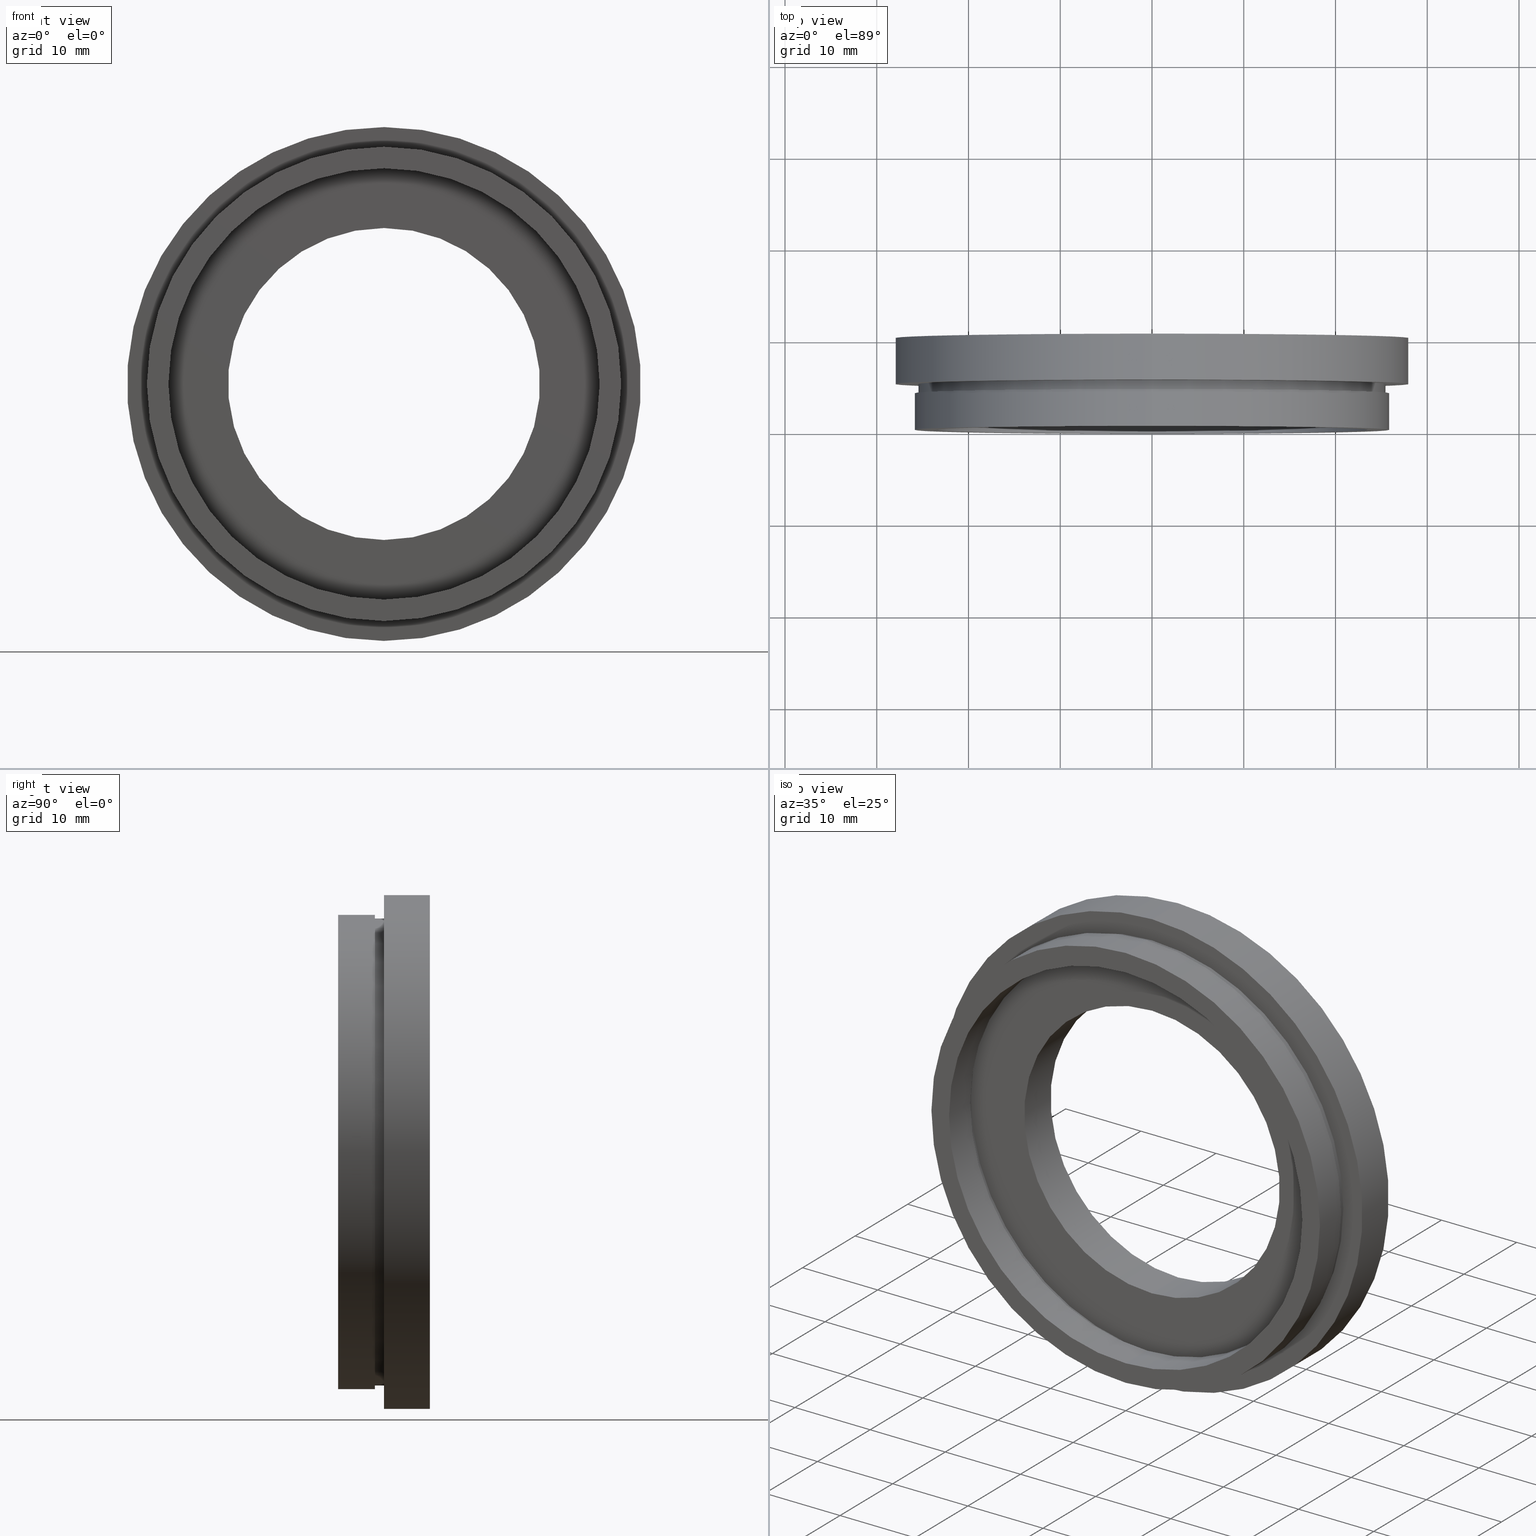
[diagram: canonical four-view strip — front | top / right | iso, engineering-drawing reading convention]
A machine part, canonical four-view strip (front | top / right | iso — engineering-drawing reading convention). The complete STEP part file that produces these views, byte-faithful:
ISO-10303-21;
HEADER;
FILE_DESCRIPTION (( 'STEP AP214' ),
    '1' );
FILE_NAME ('504095.STEP',
    '2019-10-10T01:55:58',
    ( 'user' ),
    ( '΢���й�' ),
    'SwSTEP 2.0',
    'SolidWorks 2016',
    '' );
FILE_SCHEMA (( 'AUTOMOTIVE_DESIGN' ));
ENDSEC;

DATA;
#1 = ADVANCED_FACE ( 'NONE', ( #421, #88 ), #576, .F. ) ;
#2 = ORIENTED_EDGE ( 'NONE', *, *, #249, .T. ) ;
#3 = CIRCLE ( 'NONE', #617, 17.00000000000000000 ) ;
#4 = DIRECTION ( 'NONE',  ( 0.0000000000000000000, 0.0000000000000000000, 1.000000000000000000 ) ) ;
#5 = CARTESIAN_POINT ( 'NONE',  ( 0.0000000000000000000, 13.74468085106383300, 0.0000000000000000000 ) ) ;
#6 = CARTESIAN_POINT ( 'NONE',  ( 0.0000000000000000000, 13.74468085106383300, 17.00000000000000000 ) ) ;
#7 = AXIS2_PLACEMENT_3D ( 'NONE', #189, #478, #140 ) ;
#8 = COLOUR_RGB ( '',1.000000000000000000, 1.000000000000000000, 1.000000000000000000 ) ;
#9 = ORIENTED_EDGE ( 'NONE', *, *, #225, .F. ) ;
#10 = CYLINDRICAL_SURFACE ( 'NONE', #479, 24.10000000000000100 ) ;
#11 = FACE_OUTER_BOUND ( 'NONE', #320, .T. ) ;
#12 = EDGE_CURVE ( 'NONE', #596, #565, #466, .T. ) ;
#13 = CARTESIAN_POINT ( 'NONE',  ( 2.951398785945121300E-015, 4.000000000000000000, -24.10000000000000100 ) ) ;
#14 = DIRECTION ( 'NONE',  ( -0.0000000000000000000, 1.000000000000000000, -0.0000000000000000000 ) ) ;
#15 = EDGE_CURVE ( 'NONE', #596, #142, #135, .T. ) ;
#16 = VERTEX_POINT ( 'NONE', #46 ) ;
#17 = PRESENTATION_LAYER_ASSIGNMENT (  '', '', ( #607 ) ) ;
#18 = EDGE_LOOP ( 'NONE', ( #152, #237 ) ) ;
#19 = SURFACE_STYLE_USAGE ( .BOTH. , #547 ) ;
#20 = LINE ( 'NONE', #491, #502 ) ;
#21 = PRESENTATION_STYLE_ASSIGNMENT (( #425 ) ) ;
#22 = MECHANICAL_DESIGN_GEOMETRIC_PRESENTATION_REPRESENTATION (  '', ( #579 ), #52 ) ;
#23 =( NAMED_UNIT ( * ) SI_UNIT ( $, .STERADIAN. ) SOLID_ANGLE_UNIT ( ) );
#24 = CARTESIAN_POINT ( 'NONE',  ( 3.429011037612589700E-015, 9.999999999999998200, -28.00000000000000400 ) ) ;
#25 = VERTEX_POINT ( 'NONE', #99 ) ;
#26 = CIRCLE ( 'NONE', #511, 24.10000000000000100 ) ;
#27 = FACE_OUTER_BOUND ( 'NONE', #57, .T. ) ;
#28 = AXIS2_PLACEMENT_3D ( 'NONE', #510, #209, #409 ) ;
#29 = DIRECTION ( 'NONE',  ( -0.0000000000000000000, 1.000000000000000000, -0.0000000000000000000 ) ) ;
#30 = EDGE_LOOP ( 'NONE', ( #534, #532, #123, #70 ) ) ;
#31 = AXIS2_PLACEMENT_3D ( 'NONE', #197, #50, #347 ) ;
#32 = ORIENTED_EDGE ( 'NONE', *, *, #559, .F. ) ;
#33 = ORIENTED_EDGE ( 'NONE', *, *, #357, .T. ) ;
#34 = DIRECTION ( 'NONE',  ( 0.0000000000000000000, 0.0000000000000000000, 1.000000000000000000 ) ) ;
#35 =( NAMED_UNIT ( * ) SI_UNIT ( $, .STERADIAN. ) SOLID_ANGLE_UNIT ( ) );
#36 = DIRECTION ( 'NONE',  ( -0.0000000000000000000, 1.000000000000000000, -0.0000000000000000000 ) ) ;
#37 = ORIENTED_EDGE ( 'NONE', *, *, #277, .F. ) ;
#38 = LINE ( 'NONE', #126, #162 ) ;
#39 = DIRECTION ( 'NONE',  ( 0.0000000000000000000, 0.0000000000000000000, 1.000000000000000000 ) ) ;
#40 = DIRECTION ( 'NONE',  ( -0.0000000000000000000, 1.000000000000000000, -0.0000000000000000000 ) ) ;
#41 = CARTESIAN_POINT ( 'NONE',  ( 25.44999999999999900, 4.000000000000000000, 0.0000000000000000000 ) ) ;
#42 = PLANE ( 'NONE',  #108 ) ;
#43 = EDGE_LOOP ( 'NONE', ( #104, #289, #33, #377 ) ) ;
#44 = MECHANICAL_DESIGN_GEOMETRIC_PRESENTATION_REPRESENTATION (  '', ( #607 ), #75 ) ;
#45 = ORIENTED_EDGE ( 'NONE', *, *, #341, .T. ) ;
#46 = CARTESIAN_POINT ( 'NONE',  ( 2.081899558550500300E-015, 4.999999999999999100, -17.00000000000000000 ) ) ;
#47 = ADVANCED_FACE ( 'NONE', ( #254, #506 ), #393, .F. ) ;
#48 = DIRECTION ( 'NONE',  ( 0.0000000000000000000, 0.0000000000000000000, 1.000000000000000000 ) ) ;
#49 = PRODUCT_DEFINITION_SHAPE ( 'NONE', 'NONE',  #215 ) ;
#50 = DIRECTION ( 'NONE',  ( -0.0000000000000000000, 1.000000000000000000, 0.0000000000000000000 ) ) ;
#51 =( NAMED_UNIT ( * ) SI_UNIT ( $, .STERADIAN. ) SOLID_ANGLE_UNIT ( ) );
#52 =( GEOMETRIC_REPRESENTATION_CONTEXT ( 3 ) GLOBAL_UNCERTAINTY_ASSIGNED_CONTEXT ( ( #552 ) ) GLOBAL_UNIT_ASSIGNED_CONTEXT ( ( #361, #593, #496 ) ) REPRESENTATION_CONTEXT ( 'NONE', 'WORKASPACE' ) );
#53 = FACE_OUTER_BOUND ( 'NONE', #81, .T. ) ;
#54 = EDGE_CURVE ( 'NONE', #142, #457, #403, .T. ) ;
#55 = DIRECTION ( 'NONE',  ( -0.0000000000000000000, 1.000000000000000000, -0.0000000000000000000 ) ) ;
#56 = PRESENTATION_LAYER_ASSIGNMENT (  '', '', ( #589 ) ) ;
#57 = EDGE_LOOP ( 'NONE', ( #130, #580, #412, #500 ) ) ;
#58 = ORIENTED_EDGE ( 'NONE', *, *, #181, .T. ) ;
#59 = PRESENTATION_STYLE_ASSIGNMENT (( #180 ) ) ;
#60 = COLOUR_RGB ( '',1.000000000000000000, 1.000000000000000000, 1.000000000000000000 ) ;
#61 = CARTESIAN_POINT ( 'NONE',  ( 0.0000000000000000000, 13.74468085106383300, 0.0000000000000000000 ) ) ;
#62 = ORIENTED_EDGE ( 'NONE', *, *, #213, .T. ) ;
#63 = SURFACE_STYLE_USAGE ( .BOTH. , #460 ) ;
#64 = ORIENTED_EDGE ( 'NONE', *, *, #473, .T. ) ;
#65 = EDGE_LOOP ( 'NONE', ( #392, #223 ) ) ;
#66 = PRESENTATION_STYLE_ASSIGNMENT (( #443 ) ) ;
#67 = STYLED_ITEM ( 'NONE', ( #476 ), #391 ) ;
#68 = CARTESIAN_POINT ( 'NONE',  ( 2.877919977996280300E-015, 0.0000000000000000000, -23.50000000000000000 ) ) ;
#69 = DIRECTION ( 'NONE',  ( -0.0000000000000000000, 1.000000000000000000, -0.0000000000000000000 ) ) ;
#70 = ORIENTED_EDGE ( 'NONE', *, *, #171, .T. ) ;
#71 = DIRECTION ( 'NONE',  ( 0.0000000000000000000, 0.0000000000000000000, 1.000000000000000000 ) ) ;
#72 = MANIFOLD_SOLID_BREP ( '��ת1', #558 ) ;
#73 = FACE_OUTER_BOUND ( 'NONE', #459, .T. ) ;
#74 = EDGE_CURVE ( 'NONE', #16, #235, #112, .T. ) ;
#75 =( GEOMETRIC_REPRESENTATION_CONTEXT ( 3 ) GLOBAL_UNCERTAINTY_ASSIGNED_CONTEXT ( ( #499 ) ) GLOBAL_UNIT_ASSIGNED_CONTEXT ( ( #563, #234, #35 ) ) REPRESENTATION_CONTEXT ( 'NONE', 'WORKASPACE' ) );
#76 =( LENGTH_UNIT ( ) NAMED_UNIT ( * ) SI_UNIT ( .MILLI., .METRE. ) );
#77 = FILL_AREA_STYLE ('',( #210 ) ) ;
#78 = PRESENTATION_LAYER_ASSIGNMENT (  '', '', ( #119 ) ) ;
#79 = FILL_AREA_STYLE ('',( #278 ) ) ;
#80 = EDGE_LOOP ( 'NONE', ( #334, #583, #411, #362 ) ) ;
#81 = EDGE_LOOP ( 'NONE', ( #594, #283 ) ) ;
#82 = VECTOR ( 'NONE', #354, 1000.000000000000000 ) ;
#83 = CARTESIAN_POINT ( 'NONE',  ( 0.0000000000000000000, 13.74468085106383300, 0.0000000000000000000 ) ) ;
#84 = EDGE_CURVE ( 'NONE', #433, #423, #372, .T. ) ;
#85 =( NAMED_UNIT ( * ) SI_UNIT ( $, .STERADIAN. ) SOLID_ANGLE_UNIT ( ) );
#86 = DIRECTION ( 'NONE',  ( 0.0000000000000000000, -0.0000000000000000000, -1.000000000000000000 ) ) ;
#87 = DIRECTION ( 'NONE',  ( -0.0000000000000000000, 1.000000000000000000, -0.0000000000000000000 ) ) ;
#88 = FACE_BOUND ( 'NONE', #514, .T. ) ;
#89 = MECHANICAL_DESIGN_GEOMETRIC_PRESENTATION_REPRESENTATION (  '', ( #589 ), #125 ) ;
#90 = ORIENTED_EDGE ( 'NONE', *, *, #435, .F. ) ;
#91 = PRESENTATION_STYLE_ASSIGNMENT (( #284 ) ) ;
#92 = DIRECTION ( 'NONE',  ( 0.0000000000000000000, -1.000000000000000000, 0.0000000000000000000 ) ) ;
#93 = DIRECTION ( 'NONE',  ( 0.0000000000000000000, 0.0000000000000000000, 1.000000000000000000 ) ) ;
#94 = CIRCLE ( 'NONE', #330, 28.00000000000000000 ) ;
#95 = CARTESIAN_POINT ( 'NONE',  ( 3.429011037612589700E-015, 13.74468085106383300, -28.00000000000000400 ) ) ;
#96 = CARTESIAN_POINT ( 'NONE',  ( 0.0000000000000000000, 4.999999999999999100, 17.00000000000000000 ) ) ;
#97 = STYLED_ITEM ( 'NONE', ( #272 ), #72 ) ;
#98 = ADVANCED_FACE ( 'NONE', ( #477, #358 ), #569, .F. ) ;
#99 = CARTESIAN_POINT ( 'NONE',  ( 3.116726103830013900E-015, 4.000000000000000000, -25.44999999999999900 ) ) ;
#100 = UNCERTAINTY_MEASURE_WITH_UNIT (LENGTH_MEASURE( 1.000000000000000100E-005 ), #414, 'distance_accuracy_value', 'NONE');
#101 = CARTESIAN_POINT ( 'NONE',  ( 0.0000000000000000000, 4.000000000000000000, 0.0000000000000000000 ) ) ;
#102 = VERTEX_POINT ( 'NONE', #141 ) ;
#103 =( LENGTH_UNIT ( ) NAMED_UNIT ( * ) SI_UNIT ( .MILLI., .METRE. ) );
#104 = ORIENTED_EDGE ( 'NONE', *, *, #181, .F. ) ;
#105 = ORIENTED_EDGE ( 'NONE', *, *, #550, .T. ) ;
#106 = PRESENTATION_STYLE_ASSIGNMENT (( #63 ) ) ;
#107 = LINE ( 'NONE', #6, #82 ) ;
#108 = AXIS2_PLACEMENT_3D ( 'NONE', #575, #434, #93 ) ;
#109 = DIRECTION ( 'NONE',  ( 0.0000000000000000000, 0.0000000000000000000, 1.000000000000000000 ) ) ;
#110 = DIRECTION ( 'NONE',  ( -0.0000000000000000000, 1.000000000000000000, -0.0000000000000000000 ) ) ;
#111 = VECTOR ( 'NONE', #87, 1000.000000000000000 ) ;
#112 = LINE ( 'NONE', #574, #605 ) ;
#113 = DIRECTION ( 'NONE',  ( 0.0000000000000000000, 0.0000000000000000000, 1.000000000000000000 ) ) ;
#114 = ORIENTED_EDGE ( 'NONE', *, *, #373, .F. ) ;
#115 = PLANE ( 'NONE',  #325 ) ;
#116 = VERTEX_POINT ( 'NONE', #384 ) ;
#117 = EDGE_LOOP ( 'NONE', ( #2, #445 ) ) ;
#118 = CIRCLE ( 'NONE', #555, 17.00000000000000000 ) ;
#119 = STYLED_ITEM ( 'NONE', ( #21 ), #198 ) ;
#120 = CARTESIAN_POINT ( 'NONE',  ( 24.10000000000000100, 4.999999999999999100, 0.0000000000000000000 ) ) ;
#121 = FILL_AREA_STYLE ('',( #415 ) ) ;
#122 = VECTOR ( 'NONE', #390, 1000.000000000000000 ) ;
#123 = ORIENTED_EDGE ( 'NONE', *, *, #494, .T. ) ;
#124 = SURFACE_STYLE_FILL_AREA ( #245 ) ;
#125 =( GEOMETRIC_REPRESENTATION_CONTEXT ( 3 ) GLOBAL_UNCERTAINTY_ASSIGNED_CONTEXT ( ( #100 ) ) GLOBAL_UNIT_ASSIGNED_CONTEXT ( ( #414, #319, #23 ) ) REPRESENTATION_CONTEXT ( 'NONE', 'WORKASPACE' ) );
#126 = CARTESIAN_POINT ( 'NONE',  ( 0.0000000000000000000, 13.74468085106383300, 23.50000000000000000 ) ) ;
#127 = CARTESIAN_POINT ( 'NONE',  ( 0.0000000000000000000, 5.000000000000000900, 28.00000000000000000 ) ) ;
#128 = AXIS2_PLACEMENT_3D ( 'NONE', #623, #92, #299 ) ;
#129 = ORIENTED_EDGE ( 'NONE', *, *, #166, .T. ) ;
#130 = ORIENTED_EDGE ( 'NONE', *, *, #15, .T. ) ;
#131 = CYLINDRICAL_SURFACE ( 'NONE', #526, 23.50000000000000000 ) ;
#132 = DIRECTION ( 'NONE',  ( -0.0000000000000000000, 1.000000000000000000, -0.0000000000000000000 ) ) ;
#133 =( NAMED_UNIT ( * ) PLANE_ANGLE_UNIT ( ) SI_UNIT ( $, .RADIAN. ) );
#134 = AXIS2_PLACEMENT_3D ( 'NONE', #386, #40, #340 ) ;
#135 = CIRCLE ( 'NONE', #622, 28.00000000000000000 ) ;
#136 =( LENGTH_UNIT ( ) NAMED_UNIT ( * ) SI_UNIT ( .MILLI., .METRE. ) );
#137 = CIRCLE ( 'NONE', #422, 24.10000000000000100 ) ;
#138 = CYLINDRICAL_SURFACE ( 'NONE', #600, 28.00000000000000400 ) ;
#139 = EDGE_CURVE ( 'NONE', #142, #596, #94, .T. ) ;
#140 = DIRECTION ( 'NONE',  ( 0.0000000000000000000, 0.0000000000000000000, 1.000000000000000000 ) ) ;
#141 = CARTESIAN_POINT ( 'NONE',  ( 0.0000000000000000000, 5.000000000000000900, 25.44999999999999900 ) ) ;
#142 = VERTEX_POINT ( 'NONE', #296 ) ;
#143 = ADVANCED_FACE ( 'NONE', ( #465 ), #211, .F. ) ;
#144 = UNCERTAINTY_MEASURE_WITH_UNIT (LENGTH_MEASURE( 1.000000000000000100E-005 ), #472, 'distance_accuracy_value', 'NONE');
#145 = DIRECTION ( 'NONE',  ( 0.0000000000000000000, 0.0000000000000000000, 1.000000000000000000 ) ) ;
#146 = EDGE_LOOP ( 'NONE', ( #535, #281, #616, #45 ) ) ;
#147 = FACE_OUTER_BOUND ( 'NONE', #43, .T. ) ;
#148 = ADVANCED_FACE ( 'NONE', ( #250, #73 ), #430, .F. ) ;
#149 = SURFACE_SIDE_STYLE ('',( #204 ) ) ;
#150 = AXIS2_PLACEMENT_3D ( 'NONE', #404, #236, #518 ) ;
#151 = UNCERTAINTY_MEASURE_WITH_UNIT (LENGTH_MEASURE( 1.000000000000000100E-005 ), #450, 'distance_accuracy_value', 'NONE');
#152 = ORIENTED_EDGE ( 'NONE', *, *, #341, .F. ) ;
#153 = FACE_OUTER_BOUND ( 'NONE', #355, .T. ) ;
#154 = CIRCLE ( 'NONE', #504, 24.10000000000000100 ) ;
#155 = CARTESIAN_POINT ( 'NONE',  ( 0.0000000000000000000, 9.999999999999998200, 28.00000000000000400 ) ) ;
#156 = AXIS2_PLACEMENT_3D ( 'NONE', #501, #216, #495 ) ;
#157 = ORIENTED_EDGE ( 'NONE', *, *, #494, .F. ) ;
#158 = PRESENTATION_LAYER_ASSIGNMENT (  '', '', ( #97 ) ) ;
#159 = EDGE_LOOP ( 'NONE', ( #114, #263, #570, #168 ) ) ;
#160 = CARTESIAN_POINT ( 'NONE',  ( 3.165099652396334400E-015, 4.000000000000000000, -25.84499999999999900 ) ) ;
#161 = DIRECTION ( 'NONE',  ( 0.0000000000000000000, 0.0000000000000000000, 1.000000000000000000 ) ) ;
#162 = VECTOR ( 'NONE', #509, 1000.000000000000000 ) ;
#163 = AXIS2_PLACEMENT_3D ( 'NONE', #388, #252, #530 ) ;
#164 = CARTESIAN_POINT ( 'NONE',  ( 0.0000000000000000000, 0.0000000000000000000, 0.0000000000000000000 ) ) ;
#165 =( NAMED_UNIT ( * ) SI_UNIT ( $, .STERADIAN. ) SOLID_ANGLE_UNIT ( ) );
#166 = EDGE_CURVE ( 'NONE', #565, #457, #343, .T. ) ;
#167 = DIRECTION ( 'NONE',  ( 0.0000000000000000000, 0.0000000000000000000, 1.000000000000000000 ) ) ;
#168 = ORIENTED_EDGE ( 'NONE', *, *, #542, .F. ) ;
#169 = ORIENTED_EDGE ( 'NONE', *, *, #185, .F. ) ;
#170 = ORIENTED_EDGE ( 'NONE', *, *, #139, .F. ) ;
#171 = EDGE_CURVE ( 'NONE', #610, #269, #572, .T. ) ;
#172 = AXIS2_PLACEMENT_3D ( 'NONE', #164, #178, #520 ) ;
#173 = CARTESIAN_POINT ( 'NONE',  ( 0.0000000000000000000, 13.74468085106383300, 0.0000000000000000000 ) ) ;
#174 = MECHANICAL_DESIGN_GEOMETRIC_PRESENTATION_REPRESENTATION (  '', ( #119 ), #219 ) ;
#175 = CARTESIAN_POINT ( 'NONE',  ( 0.0000000000000000000, 4.000000000000000000, 23.50000000000000000 ) ) ;
#176 = ORIENTED_EDGE ( 'NONE', *, *, #559, .T. ) ;
#177 = LINE ( 'NONE', #549, #322 ) ;
#178 = DIRECTION ( 'NONE',  ( 0.0000000000000000000, 0.0000000000000000000, 1.000000000000000000 ) ) ;
#179 = DIRECTION ( 'NONE',  ( 0.0000000000000000000, 0.0000000000000000000, 1.000000000000000000 ) ) ;
#180 = SURFACE_STYLE_USAGE ( .BOTH. , #522 ) ;
#181 = EDGE_CURVE ( 'NONE', #258, #512, #230, .T. ) ;
#182 = CARTESIAN_POINT ( 'NONE',  ( 23.50000000000000000, 4.000000000000000000, 0.0000000000000000000 ) ) ;
#183 = SURFACE_STYLE_USAGE ( .BOTH. , #525 ) ;
#184 = DIRECTION ( 'NONE',  ( 0.0000000000000000000, 0.0000000000000000000, 1.000000000000000000 ) ) ;
#185 = EDGE_CURVE ( 'NONE', #25, #218, #452, .T. ) ;
#186 = CARTESIAN_POINT ( 'NONE',  ( 2.951398785945121300E-015, 13.74468085106383300, -24.10000000000000100 ) ) ;
#187 = AXIS2_PLACEMENT_3D ( 'NONE', #214, #271, #317 ) ;
#188 =( NAMED_UNIT ( * ) SI_UNIT ( $, .STERADIAN. ) SOLID_ANGLE_UNIT ( ) );
#189 = CARTESIAN_POINT ( 'NONE',  ( 0.0000000000000000000, 4.000000000000000000, 0.0000000000000000000 ) ) ;
#190 = EDGE_LOOP ( 'NONE', ( #90, #416, #176, #467 ) ) ;
#191 = ADVANCED_FACE ( 'NONE', ( #591 ), #399, .F. ) ;
#192 = COLOUR_RGB ( '',1.000000000000000000, 1.000000000000000000, 1.000000000000000000 ) ;
#193 = DIRECTION ( 'NONE',  ( -0.0000000000000000000, 1.000000000000000000, -0.0000000000000000000 ) ) ;
#194 = SURFACE_STYLE_FILL_AREA ( #268 ) ;
#195 = CARTESIAN_POINT ( 'NONE',  ( 0.0000000000000000000, 4.000000000000000000, 0.0000000000000000000 ) ) ;
#196 = MECHANICAL_DESIGN_GEOMETRIC_PRESENTATION_REPRESENTATION (  '', ( #97 ), #232 ) ;
#197 = CARTESIAN_POINT ( 'NONE',  ( 28.00000000000000000, 5.000000000000000900, 0.0000000000000000000 ) ) ;
#198 = ADVANCED_FACE ( 'NONE', ( #147 ), #222, .T. ) ;
#199 = DIRECTION ( 'NONE',  ( 0.0000000000000000000, 0.0000000000000000000, 1.000000000000000000 ) ) ;
#200 = DIRECTION ( 'NONE',  ( 0.0000000000000000000, 0.0000000000000000000, 1.000000000000000000 ) ) ;
#201 = ORIENTED_EDGE ( 'NONE', *, *, #382, .T. ) ;
#202 = ORIENTED_EDGE ( 'NONE', *, *, #531, .T. ) ;
#203 = CARTESIAN_POINT ( 'NONE',  ( 2.081899558550500300E-015, 9.999999999999998200, -17.00000000000000000 ) ) ;
#204 = SURFACE_STYLE_FILL_AREA ( #489 ) ;
#205 = ORIENTED_EDGE ( 'NONE', *, *, #12, .T. ) ;
#206 =( NAMED_UNIT ( * ) SI_UNIT ( $, .STERADIAN. ) SOLID_ANGLE_UNIT ( ) );
#207 = PRESENTATION_LAYER_ASSIGNMENT (  '', '', ( #67 ) ) ;
#208 = EDGE_CURVE ( 'NONE', #258, #312, #469, .T. ) ;
#209 = DIRECTION ( 'NONE',  ( -0.0000000000000000000, 1.000000000000000000, -0.0000000000000000000 ) ) ;
#210 = FILL_AREA_STYLE_COLOUR ( '', #285 ) ;
#211 = CYLINDRICAL_SURFACE ( 'NONE', #453, 24.10000000000000100 ) ;
#212 = DIRECTION ( 'NONE',  ( -0.0000000000000000000, 1.000000000000000000, 0.0000000000000000000 ) ) ;
#213 = EDGE_CURVE ( 'NONE', #333, #364, #107, .T. ) ;
#214 = CARTESIAN_POINT ( 'NONE',  ( 0.0000000000000000000, 0.0000000000000000000, 0.0000000000000000000 ) ) ;
#215 = PRODUCT_DEFINITION ( 'δ֪', '', #256, #331 ) ;
#216 = DIRECTION ( 'NONE',  ( -0.0000000000000000000, 1.000000000000000000, -0.0000000000000000000 ) ) ;
#217 = VECTOR ( 'NONE', #442, 1000.000000000000000 ) ;
#218 = VERTEX_POINT ( 'NONE', #538 ) ;
#219 =( GEOMETRIC_REPRESENTATION_CONTEXT ( 3 ) GLOBAL_UNCERTAINTY_ASSIGNED_CONTEXT ( ( #480 ) ) GLOBAL_UNIT_ASSIGNED_CONTEXT ( ( #76, #561, #310 ) ) REPRESENTATION_CONTEXT ( 'NONE', 'WORKASPACE' ) );
#220 = DIRECTION ( 'NONE',  ( -0.0000000000000000000, 1.000000000000000000, -0.0000000000000000000 ) ) ;
#221 = ORIENTED_EDGE ( 'NONE', *, *, #473, .F. ) ;
#222 = CYLINDRICAL_SURFACE ( 'NONE', #318, 25.84499999999999900 ) ;
#223 = ORIENTED_EDGE ( 'NONE', *, *, #311, .T. ) ;
#224 = CARTESIAN_POINT ( 'NONE',  ( 0.0000000000000000000, 9.999999999999998200, 0.0000000000000000000 ) ) ;
#225 = EDGE_CURVE ( 'NONE', #218, #102, #598, .T. ) ;
#226 = DIRECTION ( 'NONE',  ( -0.0000000000000000000, 1.000000000000000000, -0.0000000000000000000 ) ) ;
#227 = CARTESIAN_POINT ( 'NONE',  ( 0.0000000000000000000, 4.000000000000000000, 0.0000000000000000000 ) ) ;
#228 = SURFACE_STYLE_FILL_AREA ( #79 ) ;
#229 = AXIS2_PLACEMENT_3D ( 'NONE', #505, #367, #599 ) ;
#230 = LINE ( 'NONE', #471, #328 ) ;
#231 = CARTESIAN_POINT ( 'NONE',  ( 0.0000000000000000000, 9.999999999999998200, 0.0000000000000000000 ) ) ;
#232 =( GEOMETRIC_REPRESENTATION_CONTEXT ( 3 ) GLOBAL_UNCERTAINTY_ASSIGNED_CONTEXT ( ( #592 ) ) GLOBAL_UNIT_ASSIGNED_CONTEXT ( ( #251, #529, #188 ) ) REPRESENTATION_CONTEXT ( 'NONE', 'WORKASPACE' ) );
#233 = PRODUCT ( '504095', '504095', '', ( #241 ) ) ;
#234 =( NAMED_UNIT ( * ) PLANE_ANGLE_UNIT ( ) SI_UNIT ( $, .RADIAN. ) );
#235 = VERTEX_POINT ( 'NONE', #203 ) ;
#236 = DIRECTION ( 'NONE',  ( -0.0000000000000000000, 1.000000000000000000, -0.0000000000000000000 ) ) ;
#237 = ORIENTED_EDGE ( 'NONE', *, *, #84, .F. ) ;
#238 = VERTEX_POINT ( 'NONE', #426 ) ;
#239 = FACE_OUTER_BOUND ( 'NONE', #190, .T. ) ;
#240 = CARTESIAN_POINT ( 'NONE',  ( 0.0000000000000000000, 5.000000000000000900, 0.0000000000000000000 ) ) ;
#241 = PRODUCT_CONTEXT ( 'NONE', #427, 'mechanical' ) ;
#242 = CARTESIAN_POINT ( 'NONE',  ( 0.0000000000000000000, 9.999999999999998200, 0.0000000000000000000 ) ) ;
#243 = DIRECTION ( 'NONE',  ( -0.0000000000000000000, 1.000000000000000000, -0.0000000000000000000 ) ) ;
#244 = MECHANICAL_DESIGN_GEOMETRIC_PRESENTATION_REPRESENTATION (  '', ( #67 ), #273 ) ;
#245 = FILL_AREA_STYLE ('',( #248 ) ) ;
#246 = CARTESIAN_POINT ( 'NONE',  ( 0.0000000000000000000, 4.000000000000000000, 0.0000000000000000000 ) ) ;
#247 = FACE_OUTER_BOUND ( 'NONE', #257, .T. ) ;
#248 = FILL_AREA_STYLE_COLOUR ( '', #604 ) ;
#249 = EDGE_CURVE ( 'NONE', #333, #16, #584, .T. ) ;
#250 = FACE_BOUND ( 'NONE', #18, .T. ) ;
#251 =( LENGTH_UNIT ( ) NAMED_UNIT ( * ) SI_UNIT ( .MILLI., .METRE. ) );
#252 = DIRECTION ( 'NONE',  ( -0.0000000000000000000, 1.000000000000000000, -0.0000000000000000000 ) ) ;
#253 = CARTESIAN_POINT ( 'NONE',  ( 0.0000000000000000000, 5.000000000000000900, 0.0000000000000000000 ) ) ;
#254 = FACE_BOUND ( 'NONE', #348, .T. ) ;
#255 = ADVANCED_FACE ( 'NONE', ( #337 ), #524, .T. ) ;
#256 = PRODUCT_DEFINITION_FORMATION_WITH_SPECIFIED_SOURCE ( '�κ�', '', #233, .NOT_KNOWN. ) ;
#257 = EDGE_LOOP ( 'NONE', ( #303, #313, #62, #64 ) ) ;
#258 = VERTEX_POINT ( 'NONE', #578 ) ;
#259 = LINE ( 'NONE', #461, #365 ) ;
#260 = CARTESIAN_POINT ( 'NONE',  ( 0.0000000000000000000, 4.999999999999999100, 0.0000000000000000000 ) ) ;
#261 = AXIS2_PLACEMENT_3D ( 'NONE', #260, #537, #200 ) ;
#262 = DIRECTION ( 'NONE',  ( 0.0000000000000000000, 0.0000000000000000000, 1.000000000000000000 ) ) ;
#263 = ORIENTED_EDGE ( 'NONE', *, *, #419, .T. ) ;
#264 = VECTOR ( 'NONE', #619, 1000.000000000000000 ) ;
#265 = CARTESIAN_POINT ( 'NONE',  ( 0.0000000000000000000, 5.000000000000000900, 0.0000000000000000000 ) ) ;
#266 = UNCERTAINTY_MEASURE_WITH_UNIT (LENGTH_MEASURE( 1.000000000000000100E-005 ), #136, 'distance_accuracy_value', 'NONE');
#267 = AXIS2_PLACEMENT_3D ( 'NONE', #246, #527, #184 ) ;
#268 = FILL_AREA_STYLE ('',( #544 ) ) ;
#269 = VERTEX_POINT ( 'NONE', #536 ) ;
#270 = CIRCLE ( 'NONE', #492, 25.44999999999999900 ) ;
#271 = DIRECTION ( 'NONE',  ( -0.0000000000000000000, 1.000000000000000000, -0.0000000000000000000 ) ) ;
#272 = PRESENTATION_STYLE_ASSIGNMENT (( #571 ) ) ;
#273 =( GEOMETRIC_REPRESENTATION_CONTEXT ( 3 ) GLOBAL_UNCERTAINTY_ASSIGNED_CONTEXT ( ( #266 ) ) GLOBAL_UNIT_ASSIGNED_CONTEXT ( ( #136, #431, #85 ) ) REPRESENTATION_CONTEXT ( 'NONE', 'WORKASPACE' ) );
#274 = DIRECTION ( 'NONE',  ( 0.0000000000000000000, 0.0000000000000000000, 1.000000000000000000 ) ) ;
#275 = CYLINDRICAL_SURFACE ( 'NONE', #451, 28.00000000000000400 ) ;
#276 = CIRCLE ( 'NONE', #470, 25.84499999999999900 ) ;
#277 = EDGE_CURVE ( 'NONE', #424, #116, #154, .T. ) ;
#278 = FILL_AREA_STYLE_COLOUR ( '', #356 ) ;
#279 = EDGE_LOOP ( 'NONE', ( #105, #301, #624, #9 ) ) ;
#280 = DIRECTION ( 'NONE',  ( 0.0000000000000000000, 0.0000000000000000000, 1.000000000000000000 ) ) ;
#281 = ORIENTED_EDGE ( 'NONE', *, *, #498, .F. ) ;
#282 = PRODUCT_RELATED_PRODUCT_CATEGORY ( 'part', '', ( #233 ) ) ;
#283 = ORIENTED_EDGE ( 'NONE', *, *, #587, .F. ) ;
#284 = SURFACE_STYLE_USAGE ( .BOTH. , #379 ) ;
#285 = COLOUR_RGB ( '',1.000000000000000000, 1.000000000000000000, 1.000000000000000000 ) ;
#286 = AXIS2_PLACEMENT_3D ( 'NONE', #306, #586, #262 ) ;
#287 = DIRECTION ( 'NONE',  ( -0.0000000000000000000, 1.000000000000000000, -0.0000000000000000000 ) ) ;
#288 = APPLICATION_PROTOCOL_DEFINITION ( 'draft international standard', 'automotive_design', 1998, #567 ) ;
#289 = ORIENTED_EDGE ( 'NONE', *, *, #208, .T. ) ;
#290 = CARTESIAN_POINT ( 'NONE',  ( 0.0000000000000000000, 13.74468085106383300, 0.0000000000000000000 ) ) ;
#291 = EDGE_LOOP ( 'NONE', ( #507, #170 ) ) ;
#292 = FACE_OUTER_BOUND ( 'NONE', #30, .T. ) ;
#293 = FACE_BOUND ( 'NONE', #449, .T. ) ;
#294 = DIRECTION ( 'NONE',  ( 0.0000000000000000000, 0.0000000000000000000, 1.000000000000000000 ) ) ;
#295 = FILL_AREA_STYLE ('',( #614 ) ) ;
#296 = CARTESIAN_POINT ( 'NONE',  ( 3.429011037612589300E-015, 5.000000000000000900, -28.00000000000000000 ) ) ;
#297 = CARTESIAN_POINT ( 'NONE',  ( 0.0000000000000000000, 13.74468085106383300, 25.84499999999999900 ) ) ;
#298 = AXIS2_PLACEMENT_3D ( 'NONE', #227, #69, #324 ) ;
#299 = DIRECTION ( 'NONE',  ( 0.0000000000000000000, -0.0000000000000000000, -1.000000000000000000 ) ) ;
#300 = DIRECTION ( 'NONE',  ( 0.0000000000000000000, 0.0000000000000000000, 1.000000000000000000 ) ) ;
#301 = ORIENTED_EDGE ( 'NONE', *, *, #464, .T. ) ;
#302 = ADVANCED_FACE ( 'NONE', ( #27 ), #138, .T. ) ;
#303 = ORIENTED_EDGE ( 'NONE', *, *, #74, .F. ) ;
#304 = CARTESIAN_POINT ( 'NONE',  ( 0.0000000000000000000, 13.74468085106383300, 28.00000000000000400 ) ) ;
#305 = DIRECTION ( 'NONE',  ( -0.0000000000000000000, 1.000000000000000000, -0.0000000000000000000 ) ) ;
#306 = CARTESIAN_POINT ( 'NONE',  ( 0.0000000000000000000, 0.0000000000000000000, 0.0000000000000000000 ) ) ;
#307 = ORIENTED_EDGE ( 'NONE', *, *, #357, .F. ) ;
#308 = CIRCLE ( 'NONE', #187, 23.50000000000000000 ) ;
#309 = PRESENTATION_LAYER_ASSIGNMENT (  '', '', ( #338 ) ) ;
#310 =( NAMED_UNIT ( * ) SI_UNIT ( $, .STERADIAN. ) SOLID_ANGLE_UNIT ( ) );
#311 = EDGE_CURVE ( 'NONE', #512, #497, #406, .T. ) ;
#312 = VERTEX_POINT ( 'NONE', #346 ) ;
#313 = ORIENTED_EDGE ( 'NONE', *, *, #249, .F. ) ;
#314 = CYLINDRICAL_SURFACE ( 'NONE', #368, 17.00000000000000000 ) ;
#315 = EDGE_CURVE ( 'NONE', #497, #512, #276, .T. ) ;
#316 = CARTESIAN_POINT ( 'NONE',  ( 0.0000000000000000000, 4.000000000000000000, 0.0000000000000000000 ) ) ;
#317 = DIRECTION ( 'NONE',  ( 0.0000000000000000000, 0.0000000000000000000, 1.000000000000000000 ) ) ;
#318 = AXIS2_PLACEMENT_3D ( 'NONE', #173, #132, #145 ) ;
#319 =( NAMED_UNIT ( * ) PLANE_ANGLE_UNIT ( ) SI_UNIT ( $, .RADIAN. ) );
#320 = EDGE_LOOP ( 'NONE', ( #582, #456 ) ) ;
#321 = ORIENTED_EDGE ( 'NONE', *, *, #595, .T. ) ;
#322 = VECTOR ( 'NONE', #220, 1000.000000000000000 ) ;
#323 = DIRECTION ( 'NONE',  ( 0.0000000000000000000, 0.0000000000000000000, 1.000000000000000000 ) ) ;
#324 = DIRECTION ( 'NONE',  ( 0.0000000000000000000, 0.0000000000000000000, 1.000000000000000000 ) ) ;
#325 = AXIS2_PLACEMENT_3D ( 'NONE', #120, #212, #420 ) ;
#326 = DIRECTION ( 'NONE',  ( 0.0000000000000000000, 0.0000000000000000000, 1.000000000000000000 ) ) ;
#327 = ORIENTED_EDGE ( 'NONE', *, *, #54, .F. ) ;
#328 = VECTOR ( 'NONE', #519, 1000.000000000000000 ) ;
#329 = DIRECTION ( 'NONE',  ( -0.0000000000000000000, 1.000000000000000000, -0.0000000000000000000 ) ) ;
#330 = AXIS2_PLACEMENT_3D ( 'NONE', #428, #287, #336 ) ;
#331 = PRODUCT_DEFINITION_CONTEXT ( 'detailed design', #567, 'design' ) ;
#332 = DIRECTION ( 'NONE',  ( -0.0000000000000000000, 1.000000000000000000, -0.0000000000000000000 ) ) ;
#333 = VERTEX_POINT ( 'NONE', #96 ) ;
#334 = ORIENTED_EDGE ( 'NONE', *, *, #464, .F. ) ;
#335 = ORIENTED_EDGE ( 'NONE', *, *, #498, .T. ) ;
#336 = DIRECTION ( 'NONE',  ( 0.0000000000000000000, 0.0000000000000000000, 1.000000000000000000 ) ) ;
#337 = FACE_OUTER_BOUND ( 'NONE', #546, .T. ) ;
#338 = STYLED_ITEM ( 'NONE', ( #59 ), #397 ) ;
#339 = DIRECTION ( 'NONE',  ( 0.0000000000000000000, 0.0000000000000000000, 1.000000000000000000 ) ) ;
#340 = DIRECTION ( 'NONE',  ( 0.0000000000000000000, 0.0000000000000000000, 1.000000000000000000 ) ) ;
#341 = EDGE_CURVE ( 'NONE', #423, #433, #418, .T. ) ;
#342 = FILL_AREA_STYLE ('',( #481 ) ) ;
#343 = CIRCLE ( 'NONE', #396, 28.00000000000000400 ) ;
#344 = CARTESIAN_POINT ( 'NONE',  ( 0.0000000000000000000, 4.000000000000000000, 0.0000000000000000000 ) ) ;
#345 = ADVANCED_FACE ( 'NONE', ( #11, #293 ), #42, .F. ) ;
#346 = CARTESIAN_POINT ( 'NONE',  ( 0.0000000000000000000, 0.0000000000000000000, 25.84499999999999900 ) ) ;
#347 = DIRECTION ( 'NONE',  ( 0.0000000000000000000, 0.0000000000000000000, 1.000000000000000000 ) ) ;
#348 = EDGE_LOOP ( 'NONE', ( #221, #32 ) ) ;
#349 = ADVANCED_FACE ( 'NONE', ( #508 ), #493, .T. ) ;
#350 = ORIENTED_EDGE ( 'NONE', *, *, #401, .T. ) ;
#351 = ORIENTED_EDGE ( 'NONE', *, *, #277, .T. ) ;
#352 = STYLED_ITEM ( 'NONE', ( #66 ), #255 ) ;
#353 = COLOUR_RGB ( '',1.000000000000000000, 1.000000000000000000, 1.000000000000000000 ) ;
#354 = DIRECTION ( 'NONE',  ( -0.0000000000000000000, 1.000000000000000000, -0.0000000000000000000 ) ) ;
#355 = EDGE_LOOP ( 'NONE', ( #327, #556, #205, #486 ) ) ;
#356 = COLOUR_RGB ( '',1.000000000000000000, 1.000000000000000000, 1.000000000000000000 ) ;
#357 = EDGE_CURVE ( 'NONE', #312, #497, #385, .T. ) ;
#358 = FACE_OUTER_BOUND ( 'NONE', #65, .T. ) ;
#359 = AXIS2_PLACEMENT_3D ( 'NONE', #231, #329, #280 ) ;
#360 = AXIS2_PLACEMENT_3D ( 'NONE', #41, #474, #86 ) ;
#361 =( LENGTH_UNIT ( ) NAMED_UNIT ( * ) SI_UNIT ( .MILLI., .METRE. ) );
#362 = ORIENTED_EDGE ( 'NONE', *, *, #401, .F. ) ;
#363 = ORIENTED_EDGE ( 'NONE', *, *, #315, .F. ) ;
#364 = VERTEX_POINT ( 'NONE', #475 ) ;
#365 = VECTOR ( 'NONE', #601, 1000.000000000000000 ) ;
#366 = DIRECTION ( 'NONE',  ( -0.0000000000000000000, 1.000000000000000000, -0.0000000000000000000 ) ) ;
#367 = DIRECTION ( 'NONE',  ( -0.0000000000000000000, 1.000000000000000000, -0.0000000000000000000 ) ) ;
#368 = AXIS2_PLACEMENT_3D ( 'NONE', #528, #568, #39 ) ;
#369 =( NAMED_UNIT ( * ) PLANE_ANGLE_UNIT ( ) SI_UNIT ( $, .RADIAN. ) );
#370 = EDGE_LOOP ( 'NONE', ( #487, #169 ) ) ;
#371 = LINE ( 'NONE', #186, #111 ) ;
#372 = CIRCLE ( 'NONE', #267, 23.50000000000000000 ) ;
#373 = EDGE_CURVE ( 'NONE', #455, #238, #618, .T. ) ;
#374 = DIRECTION ( 'NONE',  ( -0.0000000000000000000, 1.000000000000000000, -0.0000000000000000000 ) ) ;
#375 = UNCERTAINTY_MEASURE_WITH_UNIT (LENGTH_MEASURE( 1.000000000000000100E-005 ), #103, 'distance_accuracy_value', 'NONE');
#376 = SURFACE_SIDE_STYLE ('',( #517 ) ) ;
#377 = ORIENTED_EDGE ( 'NONE', *, *, #311, .F. ) ;
#378 = FACE_OUTER_BOUND ( 'NONE', #279, .T. ) ;
#379 = SURFACE_SIDE_STYLE ('',( #228 ) ) ;
#380 = PRESENTATION_LAYER_ASSIGNMENT (  '', '', ( #352 ) ) ;
#381 = DIRECTION ( 'NONE',  ( 0.0000000000000000000, -0.0000000000000000000, -1.000000000000000000 ) ) ;
#382 = EDGE_CURVE ( 'NONE', #424, #269, #371, .T. ) ;
#383 = SURFACE_STYLE_FILL_AREA ( #342 ) ;
#384 = CARTESIAN_POINT ( 'NONE',  ( 0.0000000000000000000, 4.000000000000000000, 24.10000000000000100 ) ) ;
#385 = LINE ( 'NONE', #297, #264 ) ;
#386 = CARTESIAN_POINT ( 'NONE',  ( 0.0000000000000000000, 0.0000000000000000000, 0.0000000000000000000 ) ) ;
#387 = DIRECTION ( 'NONE',  ( -0.0000000000000000000, 1.000000000000000000, -0.0000000000000000000 ) ) ;
#388 = CARTESIAN_POINT ( 'NONE',  ( 0.0000000000000000000, 13.74468085106383300, 0.0000000000000000000 ) ) ;
#389 = AXIS2_PLACEMENT_3D ( 'NONE', #454, #226, #274 ) ;
#390 = DIRECTION ( 'NONE',  ( -0.0000000000000000000, 1.000000000000000000, -0.0000000000000000000 ) ) ;
#391 = ADVANCED_FACE ( 'NONE', ( #247 ), #314, .F. ) ;
#392 = ORIENTED_EDGE ( 'NONE', *, *, #315, .T. ) ;
#393 = PLANE ( 'NONE',  #128 ) ;
#394 = DIRECTION ( 'NONE',  ( -0.0000000000000000000, 1.000000000000000000, -0.0000000000000000000 ) ) ;
#395 = ORIENTED_EDGE ( 'NONE', *, *, #373, .T. ) ;
#396 = AXIS2_PLACEMENT_3D ( 'NONE', #242, #521, #179 ) ;
#397 = ADVANCED_FACE ( 'NONE', ( #560 ), #131, .F. ) ;
#398 = SURFACE_STYLE_FILL_AREA ( #121 ) ;
#399 = CYLINDRICAL_SURFACE ( 'NONE', #150, 23.50000000000000000 ) ;
#400 =( NAMED_UNIT ( * ) PLANE_ANGLE_UNIT ( ) SI_UNIT ( $, .RADIAN. ) );
#401 = EDGE_CURVE ( 'NONE', #597, #102, #270, .T. ) ;
#402 = DIRECTION ( 'NONE',  ( -0.0000000000000000000, 1.000000000000000000, -0.0000000000000000000 ) ) ;
#403 = LINE ( 'NONE', #95, #122 ) ;
#404 = CARTESIAN_POINT ( 'NONE',  ( 0.0000000000000000000, 13.74468085106383300, 0.0000000000000000000 ) ) ;
#405 = MECHANICAL_DESIGN_GEOMETRIC_PRESENTATION_REPRESENTATION (  '', ( #338 ), #432 ) ;
#406 = CIRCLE ( 'NONE', #566, 25.84499999999999900 ) ;
#407 = DIRECTION ( 'NONE',  ( 0.0000000000000000000, 0.0000000000000000000, 1.000000000000000000 ) ) ;
#408 = EDGE_CURVE ( 'NONE', #102, #597, #515, .T. ) ;
#409 = DIRECTION ( 'NONE',  ( 0.0000000000000000000, 0.0000000000000000000, 1.000000000000000000 ) ) ;
#410 = DIRECTION ( 'NONE',  ( -0.0000000000000000000, 1.000000000000000000, -0.0000000000000000000 ) ) ;
#411 = ORIENTED_EDGE ( 'NONE', *, *, #225, .T. ) ;
#412 = ORIENTED_EDGE ( 'NONE', *, *, #166, .F. ) ;
#413 = MECHANICAL_DESIGN_GEOMETRIC_PRESENTATION_REPRESENTATION (  '', ( #352 ), #446 ) ;
#414 =( LENGTH_UNIT ( ) NAMED_UNIT ( * ) SI_UNIT ( .MILLI., .METRE. ) );
#415 = FILL_AREA_STYLE_COLOUR ( '', #613 ) ;
#416 = ORIENTED_EDGE ( 'NONE', *, *, #74, .T. ) ;
#417 = CIRCLE ( 'NONE', #359, 17.00000000000000000 ) ;
#418 = CIRCLE ( 'NONE', #7, 23.50000000000000000 ) ;
#419 = EDGE_CURVE ( 'NONE', #455, #433, #20, .T. ) ;
#420 = DIRECTION ( 'NONE',  ( 0.0000000000000000000, 0.0000000000000000000, 1.000000000000000000 ) ) ;
#421 = FACE_OUTER_BOUND ( 'NONE', #291, .T. ) ;
#422 = AXIS2_PLACEMENT_3D ( 'NONE', #602, #553, #109 ) ;
#423 = VERTEX_POINT ( 'NONE', #175 ) ;
#424 = VERTEX_POINT ( 'NONE', #13 ) ;
#425 = SURFACE_STYLE_USAGE ( .BOTH. , #376 ) ;
#426 = CARTESIAN_POINT ( 'NONE',  ( 0.0000000000000000000, 0.0000000000000000000, 23.50000000000000000 ) ) ;
#427 = APPLICATION_CONTEXT ( 'automotive_design' ) ;
#428 = CARTESIAN_POINT ( 'NONE',  ( 0.0000000000000000000, 5.000000000000000900, 0.0000000000000000000 ) ) ;
#429 = CIRCLE ( 'NONE', #156, 25.84499999999999900 ) ;
#430 = PLANE ( 'NONE',  #485 ) ;
#431 =( NAMED_UNIT ( * ) PLANE_ANGLE_UNIT ( ) SI_UNIT ( $, .RADIAN. ) );
#432 =( GEOMETRIC_REPRESENTATION_CONTEXT ( 3 ) GLOBAL_UNCERTAINTY_ASSIGNED_CONTEXT ( ( #144 ) ) GLOBAL_UNIT_ASSIGNED_CONTEXT ( ( #472, #133, #206 ) ) REPRESENTATION_CONTEXT ( 'NONE', 'WORKASPACE' ) );
#433 = VERTEX_POINT ( 'NONE', #513 ) ;
#434 = DIRECTION ( 'NONE',  ( -0.0000000000000000000, 1.000000000000000000, 0.0000000000000000000 ) ) ;
#435 = EDGE_CURVE ( 'NONE', #16, #333, #118, .T. ) ;
#436 = ORIENTED_EDGE ( 'NONE', *, *, #408, .T. ) ;
#437 = SHAPE_DEFINITION_REPRESENTATION ( #49, #609 ) ;
#438 = SURFACE_STYLE_FILL_AREA ( #295 ) ;
#439 = DIRECTION ( 'NONE',  ( 0.0000000000000000000, 0.0000000000000000000, 1.000000000000000000 ) ) ;
#440 = ADVANCED_FACE ( 'NONE', ( #378 ), #488, .T. ) ;
#441 = CARTESIAN_POINT ( 'NONE',  ( 0.0000000000000000000, 13.74468085106383300, 0.0000000000000000000 ) ) ;
#442 = DIRECTION ( 'NONE',  ( -0.0000000000000000000, 1.000000000000000000, -0.0000000000000000000 ) ) ;
#443 = SURFACE_STYLE_USAGE ( .BOTH. , #149 ) ;
#444 = DIRECTION ( 'NONE',  ( -0.0000000000000000000, 1.000000000000000000, -0.0000000000000000000 ) ) ;
#445 = ORIENTED_EDGE ( 'NONE', *, *, #435, .T. ) ;
#446 =( GEOMETRIC_REPRESENTATION_CONTEXT ( 3 ) GLOBAL_UNCERTAINTY_ASSIGNED_CONTEXT ( ( #375 ) ) GLOBAL_UNIT_ASSIGNED_CONTEXT ( ( #103, #400, #51 ) ) REPRESENTATION_CONTEXT ( 'NONE', 'WORKASPACE' ) );
#447 = FACE_BOUND ( 'NONE', #117, .T. ) ;
#448 = DIRECTION ( 'NONE',  ( 0.0000000000000000000, 0.0000000000000000000, 1.000000000000000000 ) ) ;
#449 = EDGE_LOOP ( 'NONE', ( #335, #395 ) ) ;
#450 =( LENGTH_UNIT ( ) NAMED_UNIT ( * ) SI_UNIT ( .MILLI., .METRE. ) );
#451 = AXIS2_PLACEMENT_3D ( 'NONE', #463, #110, #167 ) ;
#452 = CIRCLE ( 'NONE', #548, 25.44999999999999900 ) ;
#453 = AXIS2_PLACEMENT_3D ( 'NONE', #83, #36, #294 ) ;
#454 = CARTESIAN_POINT ( 'NONE',  ( 0.0000000000000000000, 9.999999999999998200, 0.0000000000000000000 ) ) ;
#455 = VERTEX_POINT ( 'NONE', #68 ) ;
#456 = ORIENTED_EDGE ( 'NONE', *, *, #208, .F. ) ;
#457 = VERTEX_POINT ( 'NONE', #24 ) ;
#458 = VECTOR ( 'NONE', #444, 1000.000000000000000 ) ;
#459 = EDGE_LOOP ( 'NONE', ( #321, #351 ) ) ;
#460 = SURFACE_SIDE_STYLE ('',( #398 ) ) ;
#461 = CARTESIAN_POINT ( 'NONE',  ( 3.116726103830013900E-015, 13.74468085106383300, -25.44999999999999900 ) ) ;
#462 = AXIS2_PLACEMENT_3D ( 'NONE', #265, #55, #590 ) ;
#463 = CARTESIAN_POINT ( 'NONE',  ( 0.0000000000000000000, 13.74468085106383300, 0.0000000000000000000 ) ) ;
#464 = EDGE_CURVE ( 'NONE', #25, #597, #259, .T. ) ;
#465 = FACE_OUTER_BOUND ( 'NONE', #540, .T. ) ;
#466 = LINE ( 'NONE', #304, #217 ) ;
#467 = ORIENTED_EDGE ( 'NONE', *, *, #213, .F. ) ;
#468 = ORIENTED_EDGE ( 'NONE', *, *, #587, .T. ) ;
#469 = CIRCLE ( 'NONE', #286, 25.84499999999999900 ) ;
#470 = AXIS2_PLACEMENT_3D ( 'NONE', #344, #621, #300 ) ;
#471 = CARTESIAN_POINT ( 'NONE',  ( 3.165099652396334400E-015, 13.74468085106383300, -25.84499999999999900 ) ) ;
#472 =( LENGTH_UNIT ( ) NAMED_UNIT ( * ) SI_UNIT ( .MILLI., .METRE. ) );
#473 = EDGE_CURVE ( 'NONE', #364, #235, #3, .T. ) ;
#474 = DIRECTION ( 'NONE',  ( 0.0000000000000000000, -1.000000000000000000, 0.0000000000000000000 ) ) ;
#475 = CARTESIAN_POINT ( 'NONE',  ( 0.0000000000000000000, 9.999999999999998200, 17.00000000000000000 ) ) ;
#476 = PRESENTATION_STYLE_ASSIGNMENT (( #183 ) ) ;
#477 = FACE_BOUND ( 'NONE', #370, .T. ) ;
#478 = DIRECTION ( 'NONE',  ( -0.0000000000000000000, 1.000000000000000000, -0.0000000000000000000 ) ) ;
#479 = AXIS2_PLACEMENT_3D ( 'NONE', #61, #374, #407 ) ;
#480 = UNCERTAINTY_MEASURE_WITH_UNIT (LENGTH_MEASURE( 1.000000000000000100E-005 ), #76, 'distance_accuracy_value', 'NONE');
#481 = FILL_AREA_STYLE_COLOUR ( '', #8 ) ;
#482 = DIRECTION ( 'NONE',  ( -0.0000000000000000000, 1.000000000000000000, -0.0000000000000000000 ) ) ;
#483 = ADVANCED_FACE ( 'NONE', ( #239 ), #551, .F. ) ;
#484 = EDGE_LOOP ( 'NONE', ( #129, #612 ) ) ;
#485 = AXIS2_PLACEMENT_3D ( 'NONE', #182, #615, #381 ) ;
#486 = ORIENTED_EDGE ( 'NONE', *, *, #585, .F. ) ;
#487 = ORIENTED_EDGE ( 'NONE', *, *, #550, .F. ) ;
#488 = CYLINDRICAL_SURFACE ( 'NONE', #28, 25.44999999999999900 ) ;
#489 = FILL_AREA_STYLE ('',( #581 ) ) ;
#490 = CARTESIAN_POINT ( 'NONE',  ( 0.0000000000000000000, 13.74468085106383300, 25.44999999999999900 ) ) ;
#491 = CARTESIAN_POINT ( 'NONE',  ( 2.877919977996280300E-015, 13.74468085106383300, -23.50000000000000000 ) ) ;
#492 = AXIS2_PLACEMENT_3D ( 'NONE', #240, #14, #113 ) ;
#493 = CYLINDRICAL_SURFACE ( 'NONE', #163, 25.44999999999999900 ) ;
#494 = EDGE_CURVE ( 'NONE', #116, #610, #177, .T. ) ;
#495 = DIRECTION ( 'NONE',  ( 0.0000000000000000000, 0.0000000000000000000, 1.000000000000000000 ) ) ;
#496 =( NAMED_UNIT ( * ) SI_UNIT ( $, .STERADIAN. ) SOLID_ANGLE_UNIT ( ) );
#497 = VERTEX_POINT ( 'NONE', #503 ) ;
#498 = EDGE_CURVE ( 'NONE', #238, #455, #308, .T. ) ;
#499 = UNCERTAINTY_MEASURE_WITH_UNIT (LENGTH_MEASURE( 1.000000000000000100E-005 ), #563, 'distance_accuracy_value', 'NONE');
#500 = ORIENTED_EDGE ( 'NONE', *, *, #12, .F. ) ;
#501 = CARTESIAN_POINT ( 'NONE',  ( 0.0000000000000000000, 0.0000000000000000000, 0.0000000000000000000 ) ) ;
#502 = VECTOR ( 'NONE', #608, 1000.000000000000000 ) ;
#503 = CARTESIAN_POINT ( 'NONE',  ( 0.0000000000000000000, 4.000000000000000000, 25.84499999999999900 ) ) ;
#504 = AXIS2_PLACEMENT_3D ( 'NONE', #101, #394, #48 ) ;
#505 = CARTESIAN_POINT ( 'NONE',  ( 0.0000000000000000000, 13.74468085106383300, 0.0000000000000000000 ) ) ;
#506 = FACE_OUTER_BOUND ( 'NONE', #484, .T. ) ;
#507 = ORIENTED_EDGE ( 'NONE', *, *, #15, .F. ) ;
#508 = FACE_OUTER_BOUND ( 'NONE', #80, .T. ) ;
#509 = DIRECTION ( 'NONE',  ( -0.0000000000000000000, 1.000000000000000000, -0.0000000000000000000 ) ) ;
#510 = CARTESIAN_POINT ( 'NONE',  ( 0.0000000000000000000, 13.74468085106383300, 0.0000000000000000000 ) ) ;
#511 = AXIS2_PLACEMENT_3D ( 'NONE', #557, #29, #326 ) ;
#512 = VERTEX_POINT ( 'NONE', #160 ) ;
#513 = CARTESIAN_POINT ( 'NONE',  ( 2.877919977996280300E-015, 4.000000000000000000, -23.50000000000000000 ) ) ;
#514 = EDGE_LOOP ( 'NONE', ( #436, #350 ) ) ;
#515 = CIRCLE ( 'NONE', #462, 25.44999999999999900 ) ;
#516 = AXIS2_PLACEMENT_3D ( 'NONE', #603, #554, #323 ) ;
#517 = SURFACE_STYLE_FILL_AREA ( #77 ) ;
#518 = DIRECTION ( 'NONE',  ( 0.0000000000000000000, 0.0000000000000000000, 1.000000000000000000 ) ) ;
#519 = DIRECTION ( 'NONE',  ( -0.0000000000000000000, 1.000000000000000000, -0.0000000000000000000 ) ) ;
#520 = DIRECTION ( 'NONE',  ( 1.000000000000000000, 0.0000000000000000000, 0.0000000000000000000 ) ) ;
#521 = DIRECTION ( 'NONE',  ( -0.0000000000000000000, 1.000000000000000000, -0.0000000000000000000 ) ) ;
#522 = SURFACE_SIDE_STYLE ('',( #438 ) ) ;
#523 = CIRCLE ( 'NONE', #389, 28.00000000000000400 ) ;
#524 = CYLINDRICAL_SURFACE ( 'NONE', #539, 25.84499999999999900 ) ;
#525 = SURFACE_SIDE_STYLE ('',( #124 ) ) ;
#526 = AXIS2_PLACEMENT_3D ( 'NONE', #290, #243, #448 ) ;
#527 = DIRECTION ( 'NONE',  ( -0.0000000000000000000, 1.000000000000000000, -0.0000000000000000000 ) ) ;
#528 = CARTESIAN_POINT ( 'NONE',  ( 0.0000000000000000000, 13.74468085106383300, 0.0000000000000000000 ) ) ;
#529 =( NAMED_UNIT ( * ) PLANE_ANGLE_UNIT ( ) SI_UNIT ( $, .RADIAN. ) );
#530 = DIRECTION ( 'NONE',  ( 0.0000000000000000000, 0.0000000000000000000, 1.000000000000000000 ) ) ;
#531 = EDGE_CURVE ( 'NONE', #312, #258, #429, .T. ) ;
#532 = ORIENTED_EDGE ( 'NONE', *, *, #595, .F. ) ;
#533 = ADVANCED_FACE ( 'NONE', ( #53, #447 ), #115, .F. ) ;
#534 = ORIENTED_EDGE ( 'NONE', *, *, #382, .F. ) ;
#535 = ORIENTED_EDGE ( 'NONE', *, *, #419, .F. ) ;
#536 = CARTESIAN_POINT ( 'NONE',  ( 2.951398785945121300E-015, 5.000000000000000900, -24.10000000000000100 ) ) ;
#537 = DIRECTION ( 'NONE',  ( -0.0000000000000000000, 1.000000000000000000, -0.0000000000000000000 ) ) ;
#538 = CARTESIAN_POINT ( 'NONE',  ( 0.0000000000000000000, 4.000000000000000000, 25.44999999999999900 ) ) ;
#539 = AXIS2_PLACEMENT_3D ( 'NONE', #5, #402, #4 ) ;
#540 = EDGE_LOOP ( 'NONE', ( #37, #201, #468, #157 ) ) ;
#541 = CIRCLE ( 'NONE', #298, 25.44999999999999900 ) ;
#542 = EDGE_CURVE ( 'NONE', #238, #423, #38, .T. ) ;
#543 = CARTESIAN_POINT ( 'NONE',  ( 3.116726103830013900E-015, 5.000000000000000900, -25.44999999999999900 ) ) ;
#544 = FILL_AREA_STYLE_COLOUR ( '', #60 ) ;
#545 =( GEOMETRIC_REPRESENTATION_CONTEXT ( 3 ) GLOBAL_UNCERTAINTY_ASSIGNED_CONTEXT ( ( #151 ) ) GLOBAL_UNIT_ASSIGNED_CONTEXT ( ( #450, #369, #165 ) ) REPRESENTATION_CONTEXT ( 'NONE', 'WORKASPACE' ) );
#546 = EDGE_LOOP ( 'NONE', ( #202, #58, #363, #307 ) ) ;
#547 = SURFACE_SIDE_STYLE ('',( #194 ) ) ;
#548 = AXIS2_PLACEMENT_3D ( 'NONE', #316, #410, #71 ) ;
#549 = CARTESIAN_POINT ( 'NONE',  ( 0.0000000000000000000, 13.74468085106383300, 24.10000000000000100 ) ) ;
#550 = EDGE_CURVE ( 'NONE', #218, #25, #541, .T. ) ;
#551 = CYLINDRICAL_SURFACE ( 'NONE', #229, 17.00000000000000000 ) ;
#552 = UNCERTAINTY_MEASURE_WITH_UNIT (LENGTH_MEASURE( 1.000000000000000100E-005 ), #361, 'distance_accuracy_value', 'NONE');
#553 = DIRECTION ( 'NONE',  ( -0.0000000000000000000, 1.000000000000000000, -0.0000000000000000000 ) ) ;
#554 = DIRECTION ( 'NONE',  ( -0.0000000000000000000, 1.000000000000000000, -0.0000000000000000000 ) ) ;
#555 = AXIS2_PLACEMENT_3D ( 'NONE', #564, #332, #34 ) ;
#556 = ORIENTED_EDGE ( 'NONE', *, *, #139, .T. ) ;
#557 = CARTESIAN_POINT ( 'NONE',  ( 0.0000000000000000000, 4.000000000000000000, 0.0000000000000000000 ) ) ;
#558 = CLOSED_SHELL ( 'NONE', ( #255, #440, #302, #483, #143, #191, #397, #148, #577, #533, #391, #47, #573, #1, #349, #98, #198, #345 ) ) ;
#559 = EDGE_CURVE ( 'NONE', #235, #364, #417, .T. ) ;
#560 = FACE_OUTER_BOUND ( 'NONE', #146, .T. ) ;
#561 =( NAMED_UNIT ( * ) PLANE_ANGLE_UNIT ( ) SI_UNIT ( $, .RADIAN. ) );
#562 = PRESENTATION_STYLE_ASSIGNMENT (( #19 ) ) ;
#563 =( LENGTH_UNIT ( ) NAMED_UNIT ( * ) SI_UNIT ( .MILLI., .METRE. ) );
#564 = CARTESIAN_POINT ( 'NONE',  ( 0.0000000000000000000, 4.999999999999999100, 0.0000000000000000000 ) ) ;
#565 = VERTEX_POINT ( 'NONE', #155 ) ;
#566 = AXIS2_PLACEMENT_3D ( 'NONE', #195, #482, #439 ) ;
#567 = APPLICATION_CONTEXT ( 'automotive_design' ) ;
#568 = DIRECTION ( 'NONE',  ( -0.0000000000000000000, 1.000000000000000000, -0.0000000000000000000 ) ) ;
#569 = PLANE ( 'NONE',  #360 ) ;
#570 = ORIENTED_EDGE ( 'NONE', *, *, #84, .T. ) ;
#571 = SURFACE_STYLE_USAGE ( .BOTH. , #620 ) ;
#572 = CIRCLE ( 'NONE', #516, 24.10000000000000100 ) ;
#573 = ADVANCED_FACE ( 'NONE', ( #153 ), #275, .T. ) ;
#574 = CARTESIAN_POINT ( 'NONE',  ( 2.081899558550500300E-015, 13.74468085106383300, -17.00000000000000000 ) ) ;
#575 = CARTESIAN_POINT ( 'NONE',  ( 25.84499999999999900, 1.283273507617168800E-016, 0.0000000000000000000 ) ) ;
#576 = PLANE ( 'NONE',  #31 ) ;
#577 = ADVANCED_FACE ( 'NONE', ( #292 ), #10, .F. ) ;
#578 = CARTESIAN_POINT ( 'NONE',  ( 3.165099652396334400E-015, 0.0000000000000000000, -25.84499999999999900 ) ) ;
#579 = STYLED_ITEM ( 'NONE', ( #562 ), #191 ) ;
#580 = ORIENTED_EDGE ( 'NONE', *, *, #54, .T. ) ;
#581 = FILL_AREA_STYLE_COLOUR ( '', #353 ) ;
#582 = ORIENTED_EDGE ( 'NONE', *, *, #531, .F. ) ;
#583 = ORIENTED_EDGE ( 'NONE', *, *, #185, .T. ) ;
#584 = CIRCLE ( 'NONE', #261, 17.00000000000000000 ) ;
#585 = EDGE_CURVE ( 'NONE', #457, #565, #523, .T. ) ;
#586 = DIRECTION ( 'NONE',  ( -0.0000000000000000000, 1.000000000000000000, -0.0000000000000000000 ) ) ;
#587 = EDGE_CURVE ( 'NONE', #269, #610, #137, .T. ) ;
#588 = APPLICATION_PROTOCOL_DEFINITION ( 'draft international standard', 'automotive_design', 1998, #427 ) ;
#589 = STYLED_ITEM ( 'NONE', ( #106 ), #483 ) ;
#590 = DIRECTION ( 'NONE',  ( 0.0000000000000000000, 0.0000000000000000000, 1.000000000000000000 ) ) ;
#591 = FACE_OUTER_BOUND ( 'NONE', #159, .T. ) ;
#592 = UNCERTAINTY_MEASURE_WITH_UNIT (LENGTH_MEASURE( 1.000000000000000100E-005 ), #251, 'distance_accuracy_value', 'NONE');
#593 =( NAMED_UNIT ( * ) PLANE_ANGLE_UNIT ( ) SI_UNIT ( $, .RADIAN. ) );
#594 = ORIENTED_EDGE ( 'NONE', *, *, #171, .F. ) ;
#595 = EDGE_CURVE ( 'NONE', #116, #424, #26, .T. ) ;
#596 = VERTEX_POINT ( 'NONE', #127 ) ;
#597 = VERTEX_POINT ( 'NONE', #543 ) ;
#598 = LINE ( 'NONE', #490, #458 ) ;
#599 = DIRECTION ( 'NONE',  ( 0.0000000000000000000, 0.0000000000000000000, 1.000000000000000000 ) ) ;
#600 = AXIS2_PLACEMENT_3D ( 'NONE', #441, #305, #199 ) ;
#601 = DIRECTION ( 'NONE',  ( -0.0000000000000000000, 1.000000000000000000, -0.0000000000000000000 ) ) ;
#602 = CARTESIAN_POINT ( 'NONE',  ( 0.0000000000000000000, 5.000000000000000900, 0.0000000000000000000 ) ) ;
#603 = CARTESIAN_POINT ( 'NONE',  ( 0.0000000000000000000, 5.000000000000000900, 0.0000000000000000000 ) ) ;
#604 = COLOUR_RGB ( '',1.000000000000000000, 1.000000000000000000, 1.000000000000000000 ) ;
#605 = VECTOR ( 'NONE', #387, 1000.000000000000000 ) ;
#606 = CARTESIAN_POINT ( 'NONE',  ( 0.0000000000000000000, 5.000000000000000900, 24.10000000000000100 ) ) ;
#607 = STYLED_ITEM ( 'NONE', ( #91 ), #609 ) ;
#608 = DIRECTION ( 'NONE',  ( -0.0000000000000000000, 1.000000000000000000, -0.0000000000000000000 ) ) ;
#609 = ADVANCED_BREP_SHAPE_REPRESENTATION ( '504095', ( #72, #172 ), #545 ) ;
#610 = VERTEX_POINT ( 'NONE', #606 ) ;
#611 = PRESENTATION_LAYER_ASSIGNMENT (  '', '', ( #579 ) ) ;
#612 = ORIENTED_EDGE ( 'NONE', *, *, #585, .T. ) ;
#613 = COLOUR_RGB ( '',1.000000000000000000, 1.000000000000000000, 1.000000000000000000 ) ;
#614 = FILL_AREA_STYLE_COLOUR ( '', #192 ) ;
#615 = DIRECTION ( 'NONE',  ( 0.0000000000000000000, -1.000000000000000000, 0.0000000000000000000 ) ) ;
#616 = ORIENTED_EDGE ( 'NONE', *, *, #542, .T. ) ;
#617 = AXIS2_PLACEMENT_3D ( 'NONE', #224, #366, #161 ) ;
#618 = CIRCLE ( 'NONE', #134, 23.50000000000000000 ) ;
#619 = DIRECTION ( 'NONE',  ( -0.0000000000000000000, 1.000000000000000000, -0.0000000000000000000 ) ) ;
#620 = SURFACE_SIDE_STYLE ('',( #383 ) ) ;
#621 = DIRECTION ( 'NONE',  ( -0.0000000000000000000, 1.000000000000000000, -0.0000000000000000000 ) ) ;
#622 = AXIS2_PLACEMENT_3D ( 'NONE', #253, #193, #339 ) ;
#623 = CARTESIAN_POINT ( 'NONE',  ( 17.00000000000000000, 9.999999999999998200, 0.0000000000000000000 ) ) ;
#624 = ORIENTED_EDGE ( 'NONE', *, *, #408, .F. ) ;
ENDSEC;
END-ISO-10303-21;
